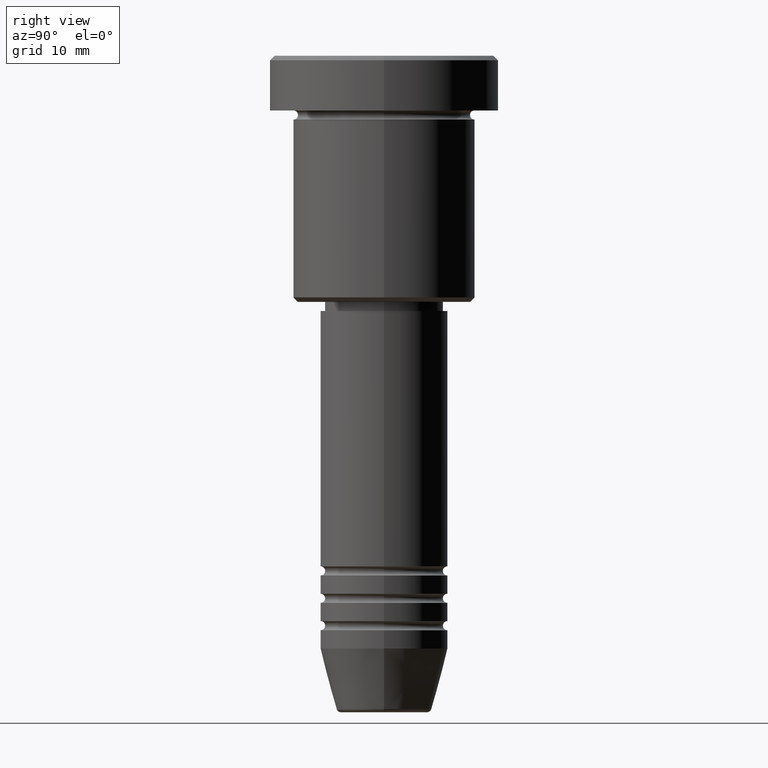
[diagram: clean part render]
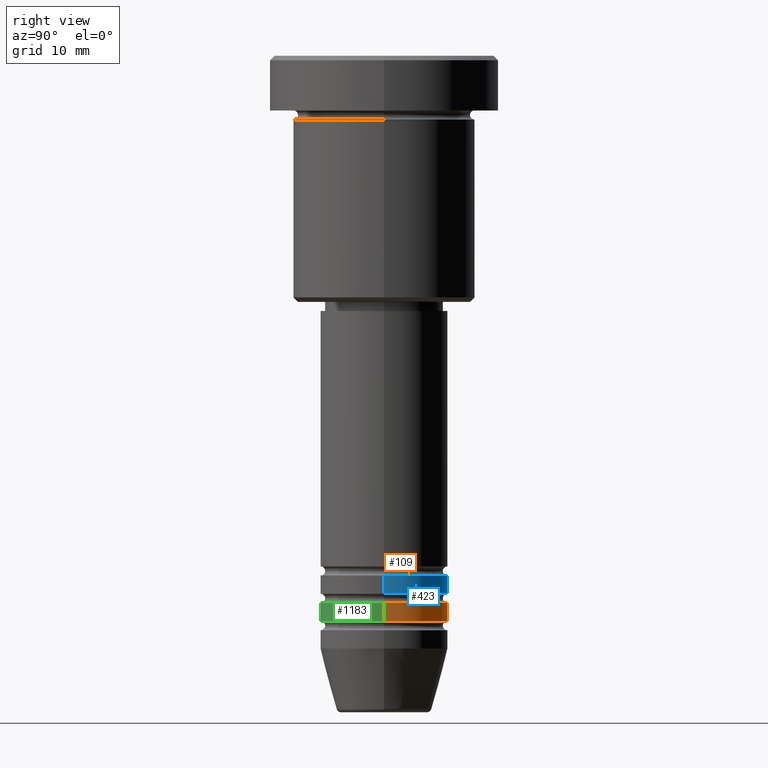
[diagram: same view with three faces highlighted in distinct colors, each labeled with its STEP entity id]
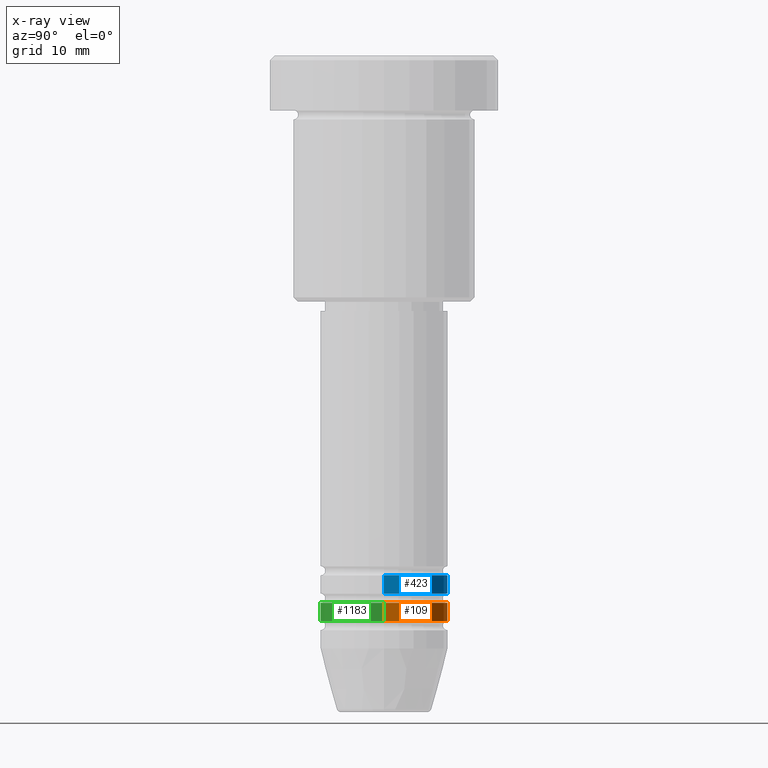
[diagram: x-ray of the same camera — body ghosted, the three highlighted faces saturated]
A machine part, right view with three faces highlighted in distinct colors.
The next image is the same camera in x-ray (body ghosted, the three faces saturated) — at least one of them is partly hidden behind the body in this view.
Their STEP definitions:

[orange] entity #109 — the highlighted cylindrical surface (partial cylindrical patch) has radius 7 mm, axis along (-0, -0, 1).
#13 = CARTESIAN_POINT ( 'NONE',  ( 0.000000000000000000, 0.000000000000000000, -59.99999999999998579 ) ) ;
#31 = VERTEX_POINT ( 'NONE', #716 ) ;
#35 = AXIS2_PLACEMENT_3D ( 'NONE', #226, #1051, #301 ) ;
#109 = ADVANCED_FACE ( 'NONE', ( #318 ), #565, .T. ) ;
#115 = EDGE_CURVE ( 'NONE', #970, #313, #1110, .T. ) ;
#117 = CARTESIAN_POINT ( 'NONE',  ( 0.000000000000000000, 0.000000000000000000, -61.99999999999998579 ) ) ;
#128 = DIRECTION ( 'NONE',  ( 1.000000000000000000, 0.000000000000000000, 0.000000000000000000 ) ) ;
#135 = ORIENTED_EDGE ( 'NONE', *, *, #887, .T. ) ;
#143 = CARTESIAN_POINT ( 'NONE',  ( 7.000000000000000000, 0.000000000000000000, -61.99999999999998579 ) ) ;
#157 = AXIS2_PLACEMENT_3D ( 'NONE', #13, #931, #457 ) ;
#226 = CARTESIAN_POINT ( 'NONE',  ( 0.000000000000000000, 0.000000000000000000, 0.000000000000000000 ) ) ;
#252 = ORIENTED_EDGE ( 'NONE', *, *, #993, .F. ) ;
#260 = DIRECTION ( 'NONE',  ( -0.000000000000000000, -0.000000000000000000, 1.000000000000000000 ) ) ;
#301 = DIRECTION ( 'NONE',  ( 1.000000000000000000, 0.000000000000000000, 0.000000000000000000 ) ) ;
#313 = VERTEX_POINT ( 'NONE', #635 ) ;
#318 = FACE_OUTER_BOUND ( 'NONE', #382, .T. ) ;
#343 = LINE ( 'NONE', #594, #1172 ) ;
#349 = ORIENTED_EDGE ( 'NONE', *, *, #1065, .F. ) ;
#370 = CIRCLE ( 'NONE', #157, 7.000000000000000000 ) ;
#382 = EDGE_LOOP ( 'NONE', ( #530, #135, #349, #252 ) ) ;
#384 = CARTESIAN_POINT ( 'NONE',  ( 7.000000000000000000, 0.000000000000000000, -59.99999999999998579 ) ) ;
#420 = CARTESIAN_POINT ( 'NONE',  ( 7.000000000000000000, 0.000000000000000000, 0.000000000000000000 ) ) ;
#425 = LINE ( 'NONE', #420, #987 ) ;
#457 = DIRECTION ( 'NONE',  ( 1.000000000000000000, 0.000000000000000000, 0.000000000000000000 ) ) ;
#530 = ORIENTED_EDGE ( 'NONE', *, *, #115, .T. ) ;
#565 = CYLINDRICAL_SURFACE ( 'NONE', #35, 7.000000000000000000 ) ;
#594 = CARTESIAN_POINT ( 'NONE',  ( -7.000000000000000000, 8.572527594031473190E-16, 0.000000000000000000 ) ) ;
#635 = CARTESIAN_POINT ( 'NONE',  ( -7.000000000000000000, 8.572527594031473190E-16, -61.99999999999998579 ) ) ;
#677 = DIRECTION ( 'NONE',  ( -0.000000000000000000, -0.000000000000000000, 1.000000000000000000 ) ) ;
#697 = DIRECTION ( 'NONE',  ( -0.000000000000000000, -0.000000000000000000, 1.000000000000000000 ) ) ;
#705 = AXIS2_PLACEMENT_3D ( 'NONE', #117, #677, #128 ) ;
#716 = CARTESIAN_POINT ( 'NONE',  ( -7.000000000000000000, 8.572527594031473190E-16, -59.99999999999998579 ) ) ;
#809 = VERTEX_POINT ( 'NONE', #384 ) ;
#887 = EDGE_CURVE ( 'NONE', #313, #31, #343, .T. ) ;
#931 = DIRECTION ( 'NONE',  ( -0.000000000000000000, -0.000000000000000000, 1.000000000000000000 ) ) ;
#970 = VERTEX_POINT ( 'NONE', #143 ) ;
#987 = VECTOR ( 'NONE', #697, 1000.000000000000000 ) ;
#993 = EDGE_CURVE ( 'NONE', #970, #809, #425, .T. ) ;
#1051 = DIRECTION ( 'NONE',  ( -0.000000000000000000, -0.000000000000000000, 1.000000000000000000 ) ) ;
#1065 = EDGE_CURVE ( 'NONE', #809, #31, #370, .T. ) ;
#1110 = CIRCLE ( 'NONE', #705, 7.000000000000000000 ) ;
#1172 = VECTOR ( 'NONE', #260, 1000.000000000000000 ) ;

[blue] entity #423 — the highlighted cylindrical surface (partial cylindrical patch) has radius 7 mm, axis along (-0, -0, 1).
#78 = CARTESIAN_POINT ( 'NONE',  ( 0.000000000000000000, 0.000000000000000000, -58.99999999999998579 ) ) ;
#164 = AXIS2_PLACEMENT_3D ( 'NONE', #78, #533, #182 ) ;
#182 = DIRECTION ( 'NONE',  ( 1.000000000000000000, 0.000000000000000000, 0.000000000000000000 ) ) ;
#201 = VECTOR ( 'NONE', #1061, 1000.000000000000000 ) ;
#327 = CARTESIAN_POINT ( 'NONE',  ( -7.000000000000000000, 8.572527594031473190E-16, 0.000000000000000000 ) ) ;
#330 = EDGE_CURVE ( 'NONE', #580, #721, #612, .T. ) ;
#354 = AXIS2_PLACEMENT_3D ( 'NONE', #691, #858, #806 ) ;
#381 = DIRECTION ( 'NONE',  ( -0.000000000000000000, -0.000000000000000000, 1.000000000000000000 ) ) ;
#423 = ADVANCED_FACE ( 'NONE', ( #707 ), #1072, .T. ) ;
#453 = CARTESIAN_POINT ( 'NONE',  ( 7.000000000000000000, 0.000000000000000000, 0.000000000000000000 ) ) ;
#533 = DIRECTION ( 'NONE',  ( -0.000000000000000000, -0.000000000000000000, 1.000000000000000000 ) ) ;
#553 = CARTESIAN_POINT ( 'NONE',  ( 0.000000000000000000, 0.000000000000000000, -56.99999999999997868 ) ) ;
#580 = VERTEX_POINT ( 'NONE', #901 ) ;
#611 = LINE ( 'NONE', #327, #201 ) ;
#612 = CIRCLE ( 'NONE', #164, 7.000000000000000000 ) ;
#620 = CARTESIAN_POINT ( 'NONE',  ( -7.000000000000000000, 8.572527594031473190E-16, -58.99999999999998579 ) ) ;
#643 = CARTESIAN_POINT ( 'NONE',  ( -7.000000000000000000, 8.572527594031473190E-16, -56.99999999999997868 ) ) ;
#644 = EDGE_CURVE ( 'NONE', #580, #710, #840, .T. ) ;
#686 = AXIS2_PLACEMENT_3D ( 'NONE', #553, #381, #724 ) ;
#687 = EDGE_CURVE ( 'NONE', #710, #1084, #1076, .T. ) ;
#691 = CARTESIAN_POINT ( 'NONE',  ( 0.000000000000000000, 0.000000000000000000, 0.000000000000000000 ) ) ;
#707 = FACE_OUTER_BOUND ( 'NONE', #1135, .T. ) ;
#710 = VERTEX_POINT ( 'NONE', #1088 ) ;
#721 = VERTEX_POINT ( 'NONE', #620 ) ;
#724 = DIRECTION ( 'NONE',  ( 1.000000000000000000, 0.000000000000000000, 0.000000000000000000 ) ) ;
#737 = DIRECTION ( 'NONE',  ( -0.000000000000000000, -0.000000000000000000, 1.000000000000000000 ) ) ;
#739 = ORIENTED_EDGE ( 'NONE', *, *, #644, .F. ) ;
#796 = ORIENTED_EDGE ( 'NONE', *, *, #330, .T. ) ;
#806 = DIRECTION ( 'NONE',  ( 1.000000000000000000, 0.000000000000000000, 0.000000000000000000 ) ) ;
#810 = ORIENTED_EDGE ( 'NONE', *, *, #954, .T. ) ;
#840 = LINE ( 'NONE', #453, #1096 ) ;
#858 = DIRECTION ( 'NONE',  ( -0.000000000000000000, -0.000000000000000000, 1.000000000000000000 ) ) ;
#901 = CARTESIAN_POINT ( 'NONE',  ( 7.000000000000000000, 0.000000000000000000, -58.99999999999998579 ) ) ;
#954 = EDGE_CURVE ( 'NONE', #721, #1084, #611, .T. ) ;
#1005 = ORIENTED_EDGE ( 'NONE', *, *, #687, .F. ) ;
#1061 = DIRECTION ( 'NONE',  ( -0.000000000000000000, -0.000000000000000000, 1.000000000000000000 ) ) ;
#1072 = CYLINDRICAL_SURFACE ( 'NONE', #354, 7.000000000000000000 ) ;
#1076 = CIRCLE ( 'NONE', #686, 7.000000000000000000 ) ;
#1084 = VERTEX_POINT ( 'NONE', #643 ) ;
#1088 = CARTESIAN_POINT ( 'NONE',  ( 7.000000000000000000, 0.000000000000000000, -56.99999999999997868 ) ) ;
#1096 = VECTOR ( 'NONE', #737, 1000.000000000000000 ) ;
#1135 = EDGE_LOOP ( 'NONE', ( #796, #810, #1005, #739 ) ) ;

[green] entity #1183 — the highlighted cylindrical surface (partial cylindrical patch) has radius 7 mm, axis along (-0, -0, 1).
#27 = AXIS2_PLACEMENT_3D ( 'NONE', #146, #950, #772 ) ;
#31 = VERTEX_POINT ( 'NONE', #716 ) ;
#122 = DIRECTION ( 'NONE',  ( -0.000000000000000000, -0.000000000000000000, 1.000000000000000000 ) ) ;
#143 = CARTESIAN_POINT ( 'NONE',  ( 7.000000000000000000, 0.000000000000000000, -61.99999999999998579 ) ) ;
#146 = CARTESIAN_POINT ( 'NONE',  ( 0.000000000000000000, 0.000000000000000000, -61.99999999999998579 ) ) ;
#166 = EDGE_CURVE ( 'NONE', #313, #970, #1048, .T. ) ;
#260 = DIRECTION ( 'NONE',  ( -0.000000000000000000, -0.000000000000000000, 1.000000000000000000 ) ) ;
#311 = DIRECTION ( 'NONE',  ( -0.000000000000000000, -0.000000000000000000, 1.000000000000000000 ) ) ;
#313 = VERTEX_POINT ( 'NONE', #635 ) ;
#343 = LINE ( 'NONE', #594, #1172 ) ;
#356 = ORIENTED_EDGE ( 'NONE', *, *, #748, .F. ) ;
#384 = CARTESIAN_POINT ( 'NONE',  ( 7.000000000000000000, 0.000000000000000000, -59.99999999999998579 ) ) ;
#402 = FACE_OUTER_BOUND ( 'NONE', #991, .T. ) ;
#420 = CARTESIAN_POINT ( 'NONE',  ( 7.000000000000000000, 0.000000000000000000, 0.000000000000000000 ) ) ;
#425 = LINE ( 'NONE', #420, #987 ) ;
#563 = CARTESIAN_POINT ( 'NONE',  ( 0.000000000000000000, 0.000000000000000000, 0.000000000000000000 ) ) ;
#571 = ORIENTED_EDGE ( 'NONE', *, *, #887, .F. ) ;
#594 = CARTESIAN_POINT ( 'NONE',  ( -7.000000000000000000, 8.572527594031473190E-16, 0.000000000000000000 ) ) ;
#627 = AXIS2_PLACEMENT_3D ( 'NONE', #764, #122, #670 ) ;
#635 = CARTESIAN_POINT ( 'NONE',  ( -7.000000000000000000, 8.572527594031473190E-16, -61.99999999999998579 ) ) ;
#670 = DIRECTION ( 'NONE',  ( 1.000000000000000000, 0.000000000000000000, 0.000000000000000000 ) ) ;
#694 = ORIENTED_EDGE ( 'NONE', *, *, #166, .T. ) ;
#697 = DIRECTION ( 'NONE',  ( -0.000000000000000000, -0.000000000000000000, 1.000000000000000000 ) ) ;
#702 = ORIENTED_EDGE ( 'NONE', *, *, #993, .T. ) ;
#716 = CARTESIAN_POINT ( 'NONE',  ( -7.000000000000000000, 8.572527594031473190E-16, -59.99999999999998579 ) ) ;
#748 = EDGE_CURVE ( 'NONE', #31, #809, #889, .T. ) ;
#751 = CYLINDRICAL_SURFACE ( 'NONE', #850, 7.000000000000000000 ) ;
#764 = CARTESIAN_POINT ( 'NONE',  ( 0.000000000000000000, 0.000000000000000000, -59.99999999999998579 ) ) ;
#772 = DIRECTION ( 'NONE',  ( 1.000000000000000000, 0.000000000000000000, 0.000000000000000000 ) ) ;
#809 = VERTEX_POINT ( 'NONE', #384 ) ;
#850 = AXIS2_PLACEMENT_3D ( 'NONE', #563, #311, #1121 ) ;
#887 = EDGE_CURVE ( 'NONE', #313, #31, #343, .T. ) ;
#889 = CIRCLE ( 'NONE', #627, 7.000000000000000000 ) ;
#950 = DIRECTION ( 'NONE',  ( -0.000000000000000000, -0.000000000000000000, 1.000000000000000000 ) ) ;
#970 = VERTEX_POINT ( 'NONE', #143 ) ;
#987 = VECTOR ( 'NONE', #697, 1000.000000000000000 ) ;
#991 = EDGE_LOOP ( 'NONE', ( #571, #694, #702, #356 ) ) ;
#993 = EDGE_CURVE ( 'NONE', #970, #809, #425, .T. ) ;
#1048 = CIRCLE ( 'NONE', #27, 7.000000000000000000 ) ;
#1121 = DIRECTION ( 'NONE',  ( 1.000000000000000000, 0.000000000000000000, 0.000000000000000000 ) ) ;
#1172 = VECTOR ( 'NONE', #260, 1000.000000000000000 ) ;
#1183 = ADVANCED_FACE ( 'NONE', ( #402 ), #751, .T. ) ;